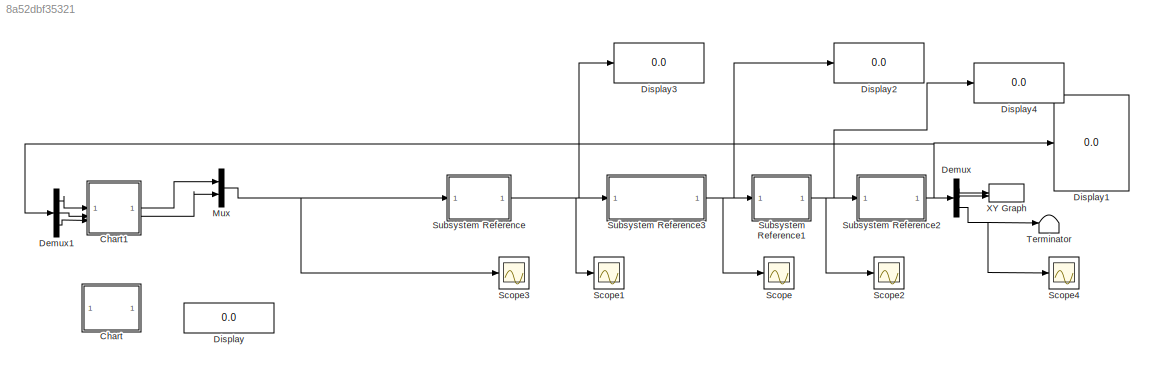
MODEL slx_8a52dbf35321
KIND model
CONFIG AbsTol = auto
CONFIG EnableMultiTasking = on
CONFIG FixedStep = 0.01
CONFIG MaxStep = auto
CONFIG MinStep = auto
CONFIG RelTol = 1e-3
CONFIG SampleTimeConstraint = Unconstrained
CONFIG SolverName = FixedStepDiscrete
CONFIG StartTime = 0.0
CONFIG StopTime = 100
WORKSPACE source: mxarray member
WORKSPACE d = 0.26
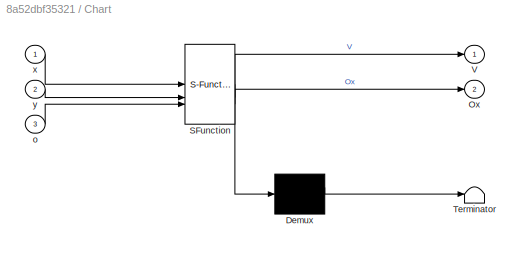
BLOCK [SubSystem] Chart
  Commented = on
  ErrorFcn = Stateflow.Translate.translate
  PermitHierarchicalResolution = ExplicitOnly
  SFBlockType = Chart
  TreatAsAtomicUnit = on
BLOCK [Demux] Chart/ Demux 
  Outputs = 1
BLOCK [S-Function] Chart/ SFunction 
  EnableBusSupport = on
  FunctionName = sf_sfun
  PortCounts = [3 3]
  SFcnIsStateOwnerBlock = off
  SFunctionDeploymentMode = off
  Tag = Stateflow S-Function 3
BLOCK [Terminator] Chart/ Terminator 
BLOCK [Outport] Chart/Ox
  Port = 2
BLOCK [Outport] Chart/V
BLOCK [Inport] Chart/o
  Port = 3
BLOCK [Inport] Chart/x
BLOCK [Inport] Chart/y
  Port = 2
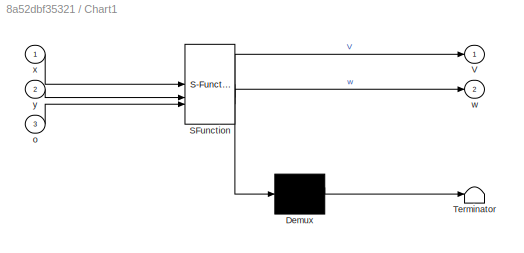
BLOCK [SubSystem] Chart1
  ErrorFcn = Stateflow.Translate.translate
  PermitHierarchicalResolution = ExplicitOnly
  SFBlockType = Chart
  TreatAsAtomicUnit = on
BLOCK [Demux] Chart1/ Demux 
  Outputs = 1
BLOCK [S-Function] Chart1/ SFunction 
  EnableBusSupport = on
  FunctionName = sf_sfun
  PortCounts = [3 3]
  SFcnIsStateOwnerBlock = off
  SFunctionDeploymentMode = off
  Tag = Stateflow S-Function 1
BLOCK [Terminator] Chart1/ Terminator 
BLOCK [Outport] Chart1/V
BLOCK [Inport] Chart1/o
  Port = 3
BLOCK [Outport] Chart1/w
  Port = 2
BLOCK [Inport] Chart1/x
BLOCK [Inport] Chart1/y
  Port = 2
BLOCK [Demux] Demux
  Outputs = 3
BLOCK [Demux] Demux1
  Outputs = 3
BLOCK [Display] Display
  Commented = on
  Decimation = 1
BLOCK [Display] Display1
  Decimation = 1
BLOCK [Display] Display2
  Decimation = 1
BLOCK [Display] Display3
  Decimation = 1
BLOCK [Display] Display4
  Decimation = 1
BLOCK [Mux] Mux
  DisplayOption = bar
  Inputs = 2
BLOCK [Scope] Scope
  Floating = off
  NumInputPorts = 1
  ScopeSpecificationString = Simulink.scopes.TimeScopeBlockCfg('CurrentConfiguration', extmgr.ConfigurationSet(extmgr.Configuration('Core','General UI',true),extmgr.Configuration('Core','Source UI',true),extmgr.Configuration('Sources','WiredSimulink',true,'DataLoggingVariableName','ScopeData4'),extmgr.Configuration('Visuals','Time Domain',true,'SerializedDisplays',{struct('MinYLimReal','-793600.23603','MaxYLimReal','7142400.0...<+1473ch>
BLOCK [Scope] Scope1
  Floating = off
  NumInputPorts = 1
  ScopeSpecificationString = Simulink.scopes.TimeScopeBlockCfg('CurrentConfiguration', extmgr.ConfigurationSet(extmgr.Configuration('Core','General UI',true),extmgr.Configuration('Core','Source UI',true),extmgr.Configuration('Sources','WiredSimulink',true,'DataLoggingVariableName','ScopeData5'),extmgr.Configuration('Visuals','Time Domain',true,'SerializedDisplays',{struct('MinYLimReal','-0.06329','MaxYLimReal','0.22925','YLab...<+1404ch>
BLOCK [Scope] Scope2
  Floating = off
  NumInputPorts = 1
  ScopeSpecificationString = Simulink.scopes.TimeScopeBlockCfg('CurrentConfiguration', extmgr.ConfigurationSet(extmgr.Configuration('Core','General UI',true),extmgr.Configuration('Core','Source UI',true),extmgr.Configuration('Sources','WiredSimulink',true,'DataLoggingVariableName','ScopeData6'),extmgr.Configuration('Visuals','Time Domain',true,'SerializedDisplays',{struct('MinYLimReal','-0.03272','MaxYLimReal','0.29452','YLab...<+1437ch>
BLOCK [Scope] Scope3
  Floating = off
  NumInputPorts = 1
  ScopeSpecificationString = Simulink.scopes.TimeScopeBlockCfg('CurrentConfiguration', extmgr.ConfigurationSet(extmgr.Configuration('Core','General UI',true),extmgr.Configuration('Core','Source UI',true),extmgr.Configuration('Sources','WiredSimulink',true,'DataLoggingVariableName','ScopeData4'),extmgr.Configuration('Visuals','Time Domain',true,'SerializedDisplays',{struct('MinYLimReal','-0.03272','MaxYLimReal','0.29452','YLab...<+1413ch>
BLOCK [Scope] Scope4
  Floating = off
  NumInputPorts = 1
  ScopeSpecificationString = Simulink.scopes.TimeScopeBlockCfg('CurrentConfiguration', extmgr.ConfigurationSet(extmgr.Configuration('Core','General UI',true),extmgr.Configuration('Core','Source UI',true),extmgr.Configuration('Sources','WiredSimulink',true,'DataLoggingVariableName','ScopeData5'),extmgr.Configuration('Visuals','Time Domain',true,'SerializedDisplays',{struct('MinYLimReal','-0.20268','MaxYLimReal','1.82414','YLab...<+1394ch>
BLOCK [SubSystem] Subsystem Reference
  ReferencedSubsystem = Inverso
BLOCK [SubSystem] Subsystem Reference1
  ReferencedSubsystem = Directo
BLOCK [SubSystem] Subsystem Reference2
  ReferencedSubsystem = Odometria
BLOCK [SubSystem] Subsystem Reference3
  ReferencedSubsystem = PieroControladoV
BLOCK [Terminator] Terminator
BLOCK [Record] XY Graph
  CompatibilityTag = XY
  FileSettingsInternal = {"entries":[{"content":{"excelSettings":{"content":{},"type":"Streamout.ExcelSettings"}},"type":"Streamout.FileSettingStorage","uuid":""}],"packageUris":["http:\/\/schema.mathworks.com\/mf0\/streamout_blocks\/R2020a"],"version":"1.0"}
  Layout = [1 1]
  SignalsInternal = {"entries":[{"content":{"signals":[{"content":{"blockPath":[],"dimensions":[1],"domain":"","lineColor":"#ff6929","plots":[ 1 ],"port":1,"sid":[""],"signalID":1,"signalName":"Demux:1"},"type":"RecordBlkView.Signal","uuid":""},{"content":{"blockPath":[],"dimensions":[1],"domain":"","lineColor":"#b746ff","plots":[ 1 ],"port":2,"sid":[""],"signalID":2,"signalName":"Demux:2"},"type":"RecordBlkView.Sign...<+160ch>
  VisualizationBindings = {"xyplotplugin":{"info":[{"series":[{"bindingParametersList":[{"parameter":"X-Axis","signalID":1,"signalName":"Demux:1"},{"parameter":"Y-Axis","signalID":2,"signalName":"Demux:2"}],"seriesID":0}],"subplotID":1}]}}
LINE Chart1:1 -> Mux:1
LINE Chart1:2 -> Mux:2
LINE Demux1:1 -> Chart1:1
LINE Demux1:2 -> Chart1:2
LINE Demux1:3 -> Chart1:3
LINE Demux:1 -> XY Graph:1
LINE Demux:2 -> XY Graph:2
NET Demux:3 -> Scope4:1, Terminator:1
NET Mux:1 -> Scope3:1, Subsystem Reference:1
NET Subsystem Reference1:1 -> Display4:1, Scope2:1, Subsystem Reference2:1
NET Subsystem Reference2:1 -> Demux1:1, Demux:1, Display1:1
NET Subsystem Reference3:1 -> Display2:1, Scope:1, Subsystem Reference1:1
NET Subsystem Reference:1 -> Display3:1, Scope1:1, Subsystem Reference3:1
note: NET lines group one-source signal fan-out (src -> all destinations, sorted); 1:1 wires keep LINE
CHART Chart1 states=9 transitions=9
  STATE_LABEL 'Inicio\nw=0;\nV=0;'
  STATE_LABEL 'Estado8\nw=0;\nV=0;'
  STATE_LABEL 'Estado1\nw=0;\nV=0.2;'
  STATE_LABEL 'Estado7\nw=0;\nV=0.2;'
  STATE_LABEL 'Estado2\nw=pi/12;\nV=0;'
  STATE_LABEL 'Estado6\nw=pi/12;\nV=0;'
  STATE_LABEL 'Estado3\nw=0;\nV=0.2;'
  STATE_LABEL 'Estado5\nw=0;\nV=0.2;'
  STATE_LABEL 'Estado4\nw=-pi/12;\nV=0;'
CHART Chart states=9 transitions=9
  STATE_LABEL 'Inicio\nOx=0;\nV=0;'
  STATE_LABEL 'Estado8\nOx=0;\nV=0;'
  STATE_LABEL 'Estado1\nOx=0;\nV=0.1;'
  STATE_LABEL 'Estado7\nOx=0;\nV=0.1;'
  STATE_LABEL 'Estado2\nOx=pi/4;\nV=0.02;'
  STATE_LABEL 'Estado6\nOx=pi/4;\nV=0.01;'
  STATE_LABEL 'Estado3\nOx=0;\nV=0.1;'
  STATE_LABEL 'Estado5\nOx=0;\nV=0.1;'
  STATE_LABEL 'Estado4\nOx=-pi/4;\nV=0.01;'
CHART  states=0 transitions=0
CHART  states=0 transitions=0
